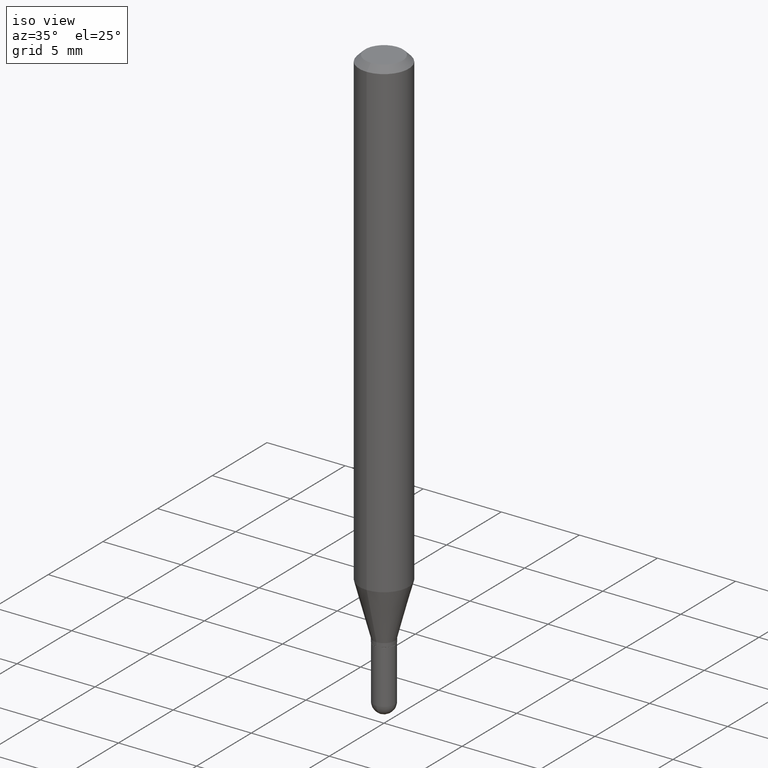
[diagram: clean part render]
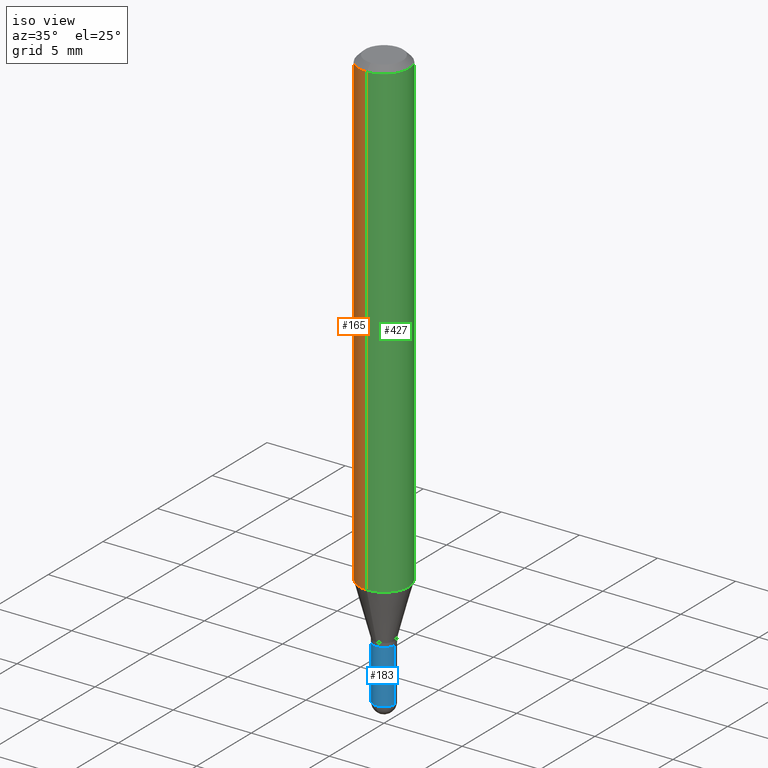
[diagram: same view with three faces highlighted in distinct colors, each labeled with its STEP entity id]
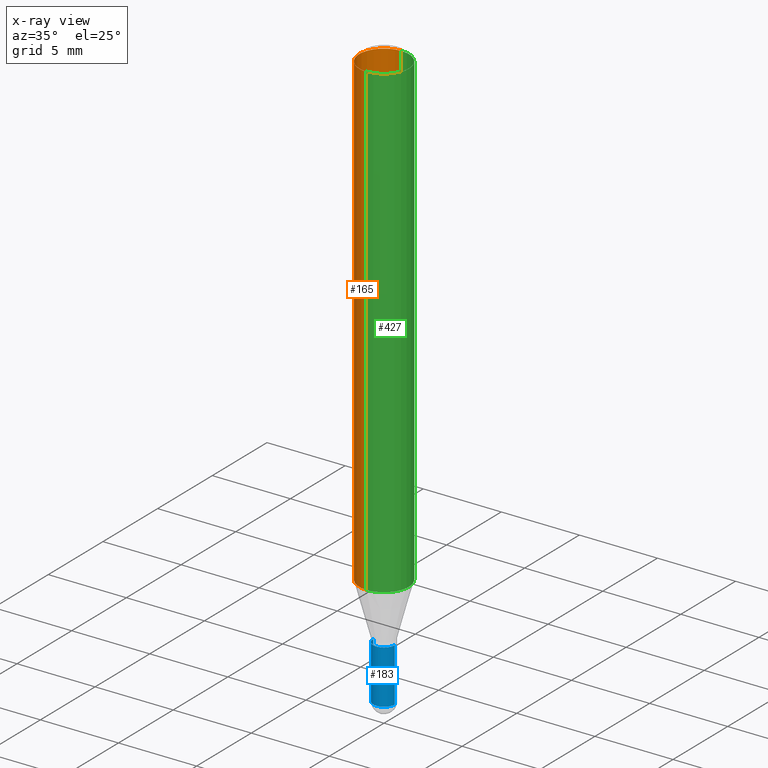
[diagram: x-ray of the same camera — body ghosted, the three highlighted faces saturated]
A machine part, iso view with three faces highlighted in distinct colors.
The next image is the same camera in x-ray (body ghosted, the three faces saturated) — at least one of them is partly hidden behind the body in this view.
Their STEP definitions:

[orange] entity #165 — the highlighted cylindrical surface (edge-blend (fillet) strip) has radius 1.5875 mm, axis along (-0, 0, 1).
#30 = VECTOR ( 'NONE', #440, 39.37007874015748143 ) ;
#49 = DIRECTION ( 'NONE',  ( -6.982962677686265922E-15, -1.000000000000000000, 3.483106191921935554E-15 ) ) ;
#79 = CIRCLE ( 'NONE', #217, 0.06250000000000000000 ) ;
#81 = DIRECTION ( 'NONE',  ( -6.982962677686265922E-15, -1.000000000000000000, 4.370956789862821150E-15 ) ) ;
#84 = LINE ( 'NONE', #279, #171 ) ;
#90 = VERTEX_POINT ( 'NONE', #221 ) ;
#124 = CARTESIAN_POINT ( 'NONE',  ( -4.364351673553912750E-16, -0.06250000000000005551, -0.01500000000000011047 ) ) ;
#138 = ORIENTED_EDGE ( 'NONE', *, *, #473, .T. ) ;
#165 = ADVANCED_FACE ( 'NONE', ( #239 ), #196, .T. ) ;
#171 = VECTOR ( 'NONE', #329, 39.37007874015748143 ) ;
#196 = CYLINDRICAL_SURFACE ( 'NONE', #262, 0.06250000000000000000 ) ;
#202 = DIRECTION ( 'NONE',  ( -2.445478454878450853E-29, 3.491467521365150190E-15, 1.000000000000000000 ) ) ;
#217 = AXIS2_PLACEMENT_3D ( 'NONE', #407, #242, #81 ) ;
#221 = CARTESIAN_POINT ( 'NONE',  ( 4.440892098500916068E-16, 0.06249999999999580891, -1.195512196331306232 ) ) ;
#239 = FACE_OUTER_BOUND ( 'NONE', #462, .T. ) ;
#242 = DIRECTION ( 'NONE',  ( -2.445478454878450853E-29, 3.491467521365150190E-15, 1.000000000000000000 ) ) ;
#243 = CARTESIAN_POINT ( 'NONE',  ( 0.000000000000000000, 0.000000000000000000, 0.000000000000000000 ) ) ;
#246 = CARTESIAN_POINT ( 'NONE',  ( -4.364351673553626295E-16, -0.06250000000000420497, -1.195512196331305566 ) ) ;
#262 = AXIS2_PLACEMENT_3D ( 'NONE', #243, #320, #475 ) ;
#279 = CARTESIAN_POINT ( 'NONE',  ( 4.440892098500625669E-16, 0.06250000000000000000, -2.182167200853218622E-16 ) ) ;
#319 = CARTESIAN_POINT ( 'NONE',  ( -4.364351673553916201E-16, -0.06250000000000000000, 2.182167200853218622E-16 ) ) ;
#320 = DIRECTION ( 'NONE',  ( -2.445478454878450853E-29, 3.491467521365150190E-15, 1.000000000000000000 ) ) ;
#329 = DIRECTION ( 'NONE',  ( -2.445478454878450853E-29, 3.491467521365150190E-15, 1.000000000000000000 ) ) ;
#368 = ORIENTED_EDGE ( 'NONE', *, *, #510, .F. ) ;
#402 = LINE ( 'NONE', #319, #30 ) ;
#404 = CARTESIAN_POINT ( 'NONE',  ( 3.668217682317756627E-31, -5.237201282047839965E-17, -0.01500000000000032904 ) ) ;
#407 = CARTESIAN_POINT ( 'NONE',  ( 2.923599318672625307E-29, -4.174092004886671043E-15, -1.195512196331305788 ) ) ;
#438 = CARTESIAN_POINT ( 'NONE',  ( 4.440892098500920012E-16, 0.06249999999999995143, -0.01500000000000054588 ) ) ;
#440 = DIRECTION ( 'NONE',  ( -2.445478454878450853E-29, 3.491467521365150190E-15, 1.000000000000000000 ) ) ;
#459 = CIRCLE ( 'NONE', #500, 0.06250000000000000000 ) ;
#462 = EDGE_LOOP ( 'NONE', ( #493, #490, #138, #368 ) ) ;
#473 = EDGE_CURVE ( 'NONE', #486, #495, #402, .T. ) ;
#475 = DIRECTION ( 'NONE',  ( -6.982962677686265922E-15, -1.000000000000000000, 3.491467521365149795E-15 ) ) ;
#481 = VERTEX_POINT ( 'NONE', #438 ) ;
#486 = VERTEX_POINT ( 'NONE', #246 ) ;
#488 = EDGE_CURVE ( 'NONE', #90, #481, #84, .T. ) ;
#490 = ORIENTED_EDGE ( 'NONE', *, *, #498, .T. ) ;
#493 = ORIENTED_EDGE ( 'NONE', *, *, #488, .F. ) ;
#495 = VERTEX_POINT ( 'NONE', #124 ) ;
#498 = EDGE_CURVE ( 'NONE', #90, #486, #79, .T. ) ;
#500 = AXIS2_PLACEMENT_3D ( 'NONE', #404, #202, #49 ) ;
#510 = EDGE_CURVE ( 'NONE', #481, #495, #459, .T. ) ;

[blue] entity #183 — the highlighted cylindrical surface (edge-blend (fillet) strip) has radius 0.6858 mm, axis along (-0, 0, 1).
#2 = DIRECTION ( 'NONE',  ( -2.445468806185136597E-29, 3.491481338843145583E-15, 1.000000000000000000 ) ) ;
#11 = AXIS2_PLACEMENT_3D ( 'NONE', #388, #61, #228 ) ;
#50 = VERTEX_POINT ( 'NONE', #63 ) ;
#59 = AXIS2_PLACEMENT_3D ( 'NONE', #431, #379, #117 ) ;
#61 = DIRECTION ( 'NONE',  ( -2.445468806185136597E-29, 3.491481338843145583E-15, 1.000000000000000000 ) ) ;
#63 = CARTESIAN_POINT ( 'NONE',  ( -0.02699999999999999969, -4.715430483088814160E-15, -1.338000000000000078 ) ) ;
#72 = DIRECTION ( 'NONE',  ( -2.445468806185136597E-29, 3.491481338843145583E-15, 1.000000000000000000 ) ) ;
#77 = CARTESIAN_POINT ( 'NONE',  ( 0.02700000000000000316, -5.095817014041570866E-15, -1.473000000000000309 ) ) ;
#82 = CARTESIAN_POINT ( 'NONE',  ( -0.02700000000000000316, -4.715430483088814160E-15, -1.473000000000000309 ) ) ;
#110 = CARTESIAN_POINT ( 'NONE',  ( -0.02700000000000000316, 1.918465386552270727E-16, -1.328112474368824641E-30 ) ) ;
#117 = DIRECTION ( 'NONE',  ( 1.000000000000000000, -6.982962677686259611E-15, 0.000000000000000000 ) ) ;
#134 = ORIENTED_EDGE ( 'NONE', *, *, #365, .T. ) ;
#146 = CARTESIAN_POINT ( 'NONE',  ( 0.02699999999999999969, -4.860142023669657629E-15, -1.338000000000000078 ) ) ;
#157 = FACE_OUTER_BOUND ( 'NONE', #205, .T. ) ;
#183 = ADVANCED_FACE ( 'NONE', ( #157 ), #395, .T. ) ;
#185 = CARTESIAN_POINT ( 'NONE',  ( 0.02700000000000000316, -1.885399922975292387E-16, 1.316567729464902685E-30 ) ) ;
#193 = AXIS2_PLACEMENT_3D ( 'NONE', #429, #72, #511 ) ;
#205 = EDGE_LOOP ( 'NONE', ( #225, #215, #374, #134, #354 ) ) ;
#215 = ORIENTED_EDGE ( 'NONE', *, *, #443, .T. ) ;
#216 = VECTOR ( 'NONE', #267, 39.37007874015748143 ) ;
#225 = ORIENTED_EDGE ( 'NONE', *, *, #330, .F. ) ;
#228 = DIRECTION ( 'NONE',  ( 1.000000000000000000, -6.982962677686259611E-15, 0.000000000000000000 ) ) ;
#252 = VERTEX_POINT ( 'NONE', #82 ) ;
#253 = EDGE_CURVE ( 'NONE', #50, #423, #435, .T. ) ;
#255 = VECTOR ( 'NONE', #460, 39.37007874015748143 ) ;
#263 = CIRCLE ( 'NONE', #59, 0.02700000000000000316 ) ;
#267 = DIRECTION ( 'NONE',  ( -2.445468806185136877E-29, 3.491481338843145188E-15, 1.000000000000000000 ) ) ;
#322 = CARTESIAN_POINT ( 'NONE',  ( -1.885399922974936906E-16, -0.02700000000000522121, -1.473000000000000309 ) ) ;
#326 = CIRCLE ( 'NONE', #11, 0.02700000000000000316 ) ;
#330 = EDGE_CURVE ( 'NONE', #252, #50, #470, .T. ) ;
#340 = LINE ( 'NONE', #185, #255 ) ;
#354 = ORIENTED_EDGE ( 'NONE', *, *, #253, .F. ) ;
#365 = EDGE_CURVE ( 'NONE', #492, #423, #340, .T. ) ;
#372 = AXIS2_PLACEMENT_3D ( 'NONE', #474, #2, #403 ) ;
#374 = ORIENTED_EDGE ( 'NONE', *, *, #380, .T. ) ;
#379 = DIRECTION ( 'NONE',  ( -2.445468806185136597E-29, 3.491481338843145583E-15, 1.000000000000000000 ) ) ;
#380 = EDGE_CURVE ( 'NONE', #455, #492, #326, .T. ) ;
#388 = CARTESIAN_POINT ( 'NONE',  ( 3.602175551510707068E-29, -5.142952012115954617E-15, -1.473000000000000309 ) ) ;
#395 = CYLINDRICAL_SURFACE ( 'NONE', #372, 0.02700000000000000316 ) ;
#403 = DIRECTION ( 'NONE',  ( 1.000000000000000000, -6.982962677686267499E-15, 4.876176775795935232E-29 ) ) ;
#423 = VERTEX_POINT ( 'NONE', #146 ) ;
#429 = CARTESIAN_POINT ( 'NONE',  ( 3.272037262675712888E-29, -4.671602031372128143E-15, -1.338000000000000078 ) ) ;
#431 = CARTESIAN_POINT ( 'NONE',  ( 3.602175551510707068E-29, -5.142952012115954617E-15, -1.473000000000000309 ) ) ;
#435 = CIRCLE ( 'NONE', #193, 0.02699999999999999969 ) ;
#443 = EDGE_CURVE ( 'NONE', #252, #455, #263, .T. ) ;
#455 = VERTEX_POINT ( 'NONE', #322 ) ;
#460 = DIRECTION ( 'NONE',  ( -2.445468806185136877E-29, 3.491481338843145188E-15, 1.000000000000000000 ) ) ;
#470 = LINE ( 'NONE', #110, #216 ) ;
#474 = CARTESIAN_POINT ( 'NONE',  ( 0.000000000000000000, 0.000000000000000000, 0.000000000000000000 ) ) ;
#492 = VERTEX_POINT ( 'NONE', #77 ) ;
#511 = DIRECTION ( 'NONE',  ( 1.000000000000000000, -6.982962677686261189E-15, 0.000000000000000000 ) ) ;

[green] entity #427 — the highlighted cylindrical surface (edge-blend (fillet) strip) has radius 1.5875 mm, axis along (-0, 0, 1).
#30 = VECTOR ( 'NONE', #440, 39.37007874015748143 ) ;
#33 = DIRECTION ( 'NONE',  ( -6.982962677686265922E-15, -1.000000000000000000, 3.491467521365149795E-15 ) ) ;
#71 = CYLINDRICAL_SURFACE ( 'NONE', #373, 0.06250000000000000000 ) ;
#84 = LINE ( 'NONE', #279, #171 ) ;
#90 = VERTEX_POINT ( 'NONE', #221 ) ;
#124 = CARTESIAN_POINT ( 'NONE',  ( -4.364351673553912750E-16, -0.06250000000000005551, -0.01500000000000011047 ) ) ;
#125 = EDGE_CURVE ( 'NONE', #486, #90, #164, .T. ) ;
#149 = CARTESIAN_POINT ( 'NONE',  ( 0.000000000000000000, 0.000000000000000000, 0.000000000000000000 ) ) ;
#164 = CIRCLE ( 'NONE', #471, 0.06250000000000000000 ) ;
#171 = VECTOR ( 'NONE', #329, 39.37007874015748143 ) ;
#188 = DIRECTION ( 'NONE',  ( -6.982962677686265922E-15, -1.000000000000000000, 4.370956789862821150E-15 ) ) ;
#221 = CARTESIAN_POINT ( 'NONE',  ( 4.440892098500916068E-16, 0.06249999999999580891, -1.195512196331306232 ) ) ;
#232 = AXIS2_PLACEMENT_3D ( 'NONE', #357, #327, #364 ) ;
#246 = CARTESIAN_POINT ( 'NONE',  ( -4.364351673553626295E-16, -0.06250000000000420497, -1.195512196331305566 ) ) ;
#251 = ORIENTED_EDGE ( 'NONE', *, *, #125, .T. ) ;
#254 = ORIENTED_EDGE ( 'NONE', *, *, #473, .F. ) ;
#278 = EDGE_LOOP ( 'NONE', ( #251, #292, #335, #254 ) ) ;
#279 = CARTESIAN_POINT ( 'NONE',  ( 4.440892098500625669E-16, 0.06250000000000000000, -2.182167200853218622E-16 ) ) ;
#292 = ORIENTED_EDGE ( 'NONE', *, *, #488, .T. ) ;
#314 = DIRECTION ( 'NONE',  ( -2.445478454878450853E-29, 3.491467521365150190E-15, 1.000000000000000000 ) ) ;
#316 = DIRECTION ( 'NONE',  ( -2.445478454878450853E-29, 3.491467521365150190E-15, 1.000000000000000000 ) ) ;
#319 = CARTESIAN_POINT ( 'NONE',  ( -4.364351673553916201E-16, -0.06250000000000000000, 2.182167200853218622E-16 ) ) ;
#327 = DIRECTION ( 'NONE',  ( -2.445478454878450853E-29, 3.491467521365150190E-15, 1.000000000000000000 ) ) ;
#329 = DIRECTION ( 'NONE',  ( -2.445478454878450853E-29, 3.491467521365150190E-15, 1.000000000000000000 ) ) ;
#335 = ORIENTED_EDGE ( 'NONE', *, *, #483, .F. ) ;
#344 = CIRCLE ( 'NONE', #232, 0.06250000000000000000 ) ;
#353 = CARTESIAN_POINT ( 'NONE',  ( 2.923599318672625307E-29, -4.174092004886671043E-15, -1.195512196331305788 ) ) ;
#357 = CARTESIAN_POINT ( 'NONE',  ( 3.668217682317756627E-31, -5.237201282047839965E-17, -0.01500000000000032904 ) ) ;
#364 = DIRECTION ( 'NONE',  ( -6.982962677686265922E-15, -1.000000000000000000, 3.483106191921935554E-15 ) ) ;
#373 = AXIS2_PLACEMENT_3D ( 'NONE', #149, #314, #33 ) ;
#402 = LINE ( 'NONE', #319, #30 ) ;
#427 = ADVANCED_FACE ( 'NONE', ( #428 ), #71, .T. ) ;
#428 = FACE_OUTER_BOUND ( 'NONE', #278, .T. ) ;
#438 = CARTESIAN_POINT ( 'NONE',  ( 4.440892098500920012E-16, 0.06249999999999995143, -0.01500000000000054588 ) ) ;
#440 = DIRECTION ( 'NONE',  ( -2.445478454878450853E-29, 3.491467521365150190E-15, 1.000000000000000000 ) ) ;
#471 = AXIS2_PLACEMENT_3D ( 'NONE', #353, #316, #188 ) ;
#473 = EDGE_CURVE ( 'NONE', #486, #495, #402, .T. ) ;
#481 = VERTEX_POINT ( 'NONE', #438 ) ;
#483 = EDGE_CURVE ( 'NONE', #495, #481, #344, .T. ) ;
#486 = VERTEX_POINT ( 'NONE', #246 ) ;
#488 = EDGE_CURVE ( 'NONE', #90, #481, #84, .T. ) ;
#495 = VERTEX_POINT ( 'NONE', #124 ) ;